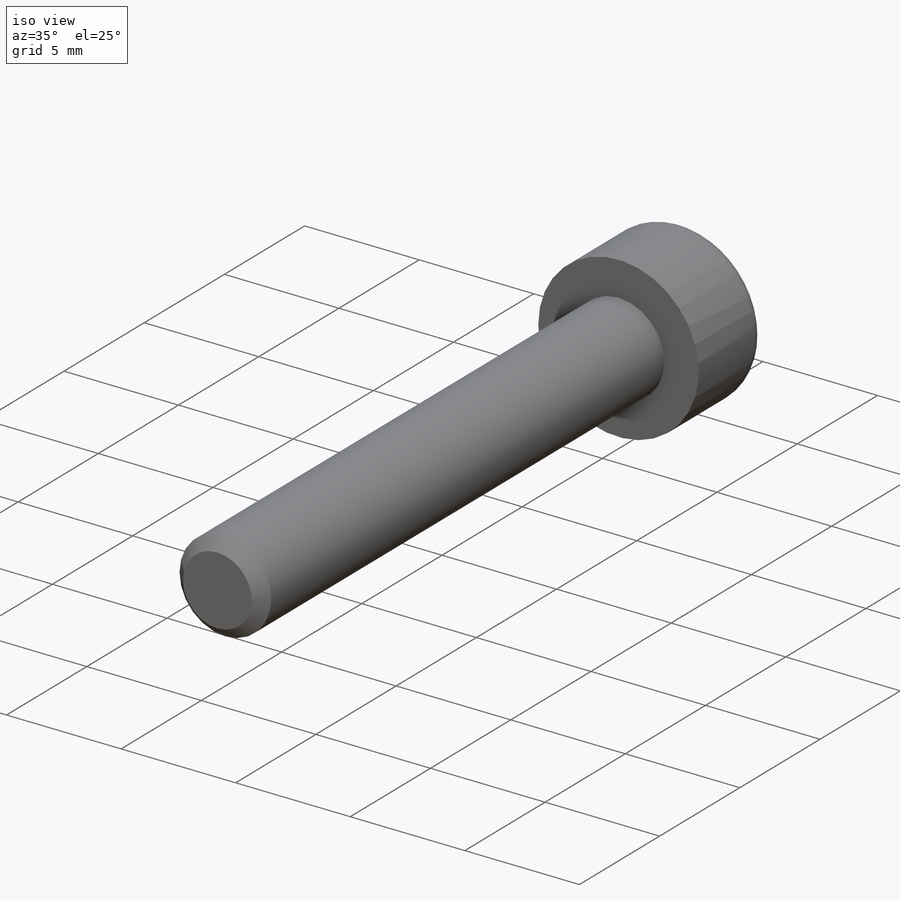
[diagram: iso view]
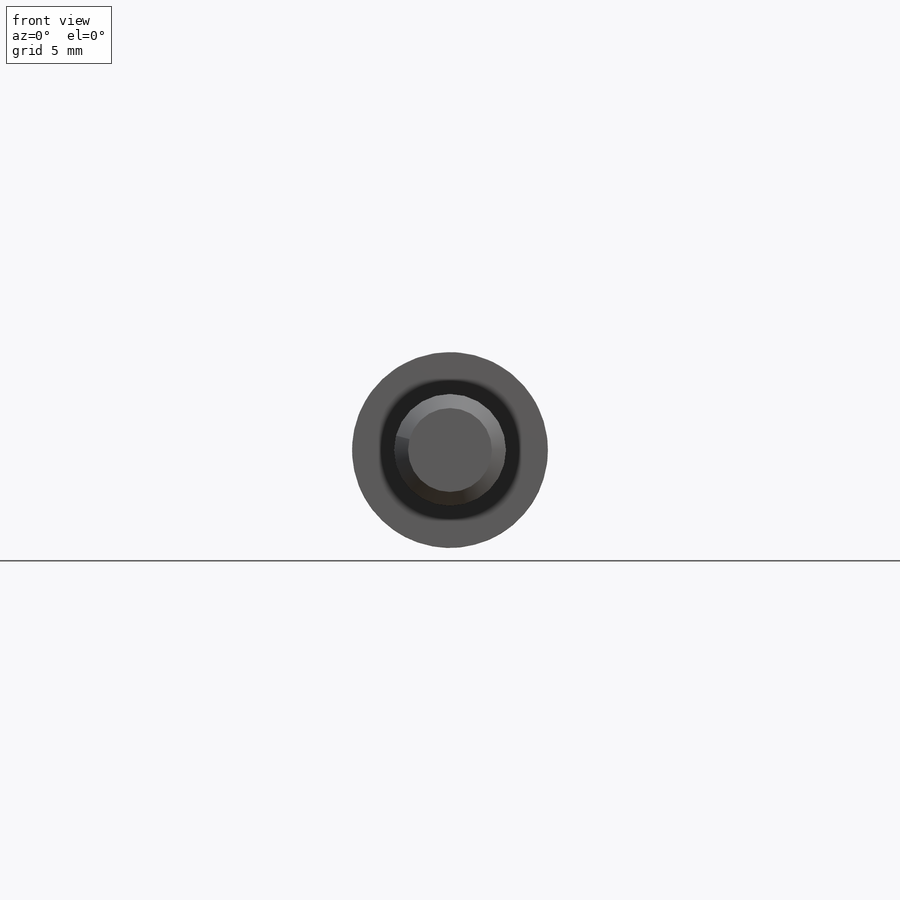
[diagram: front view]
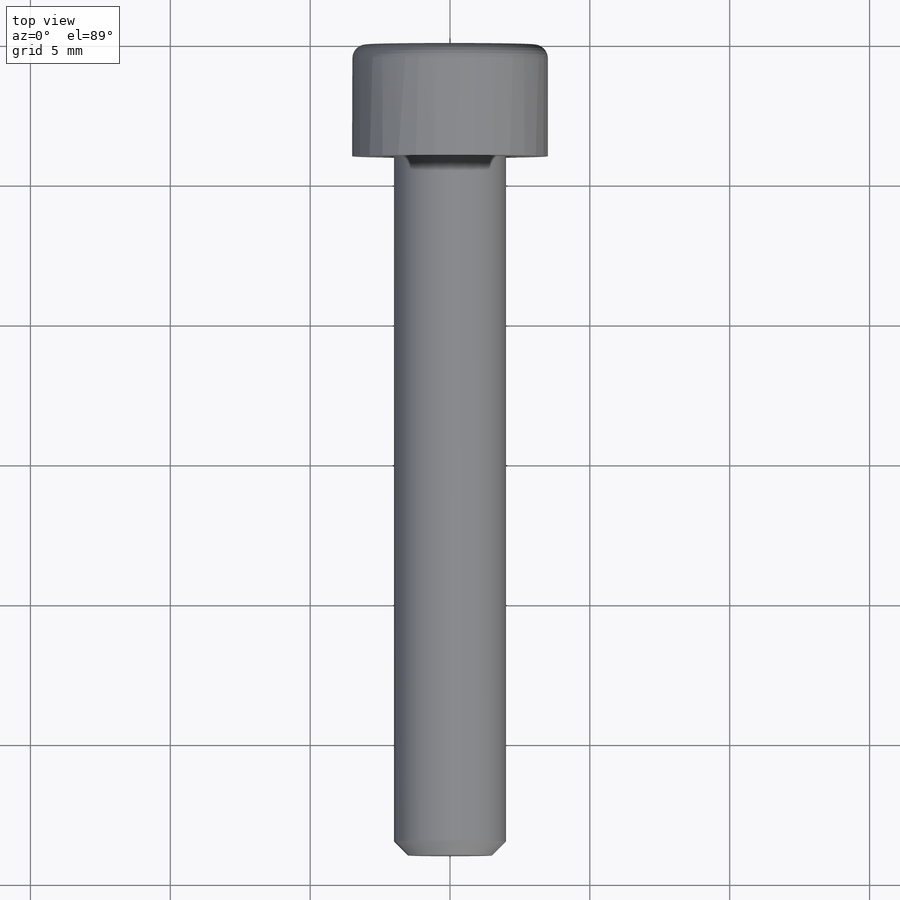
[diagram: top view]
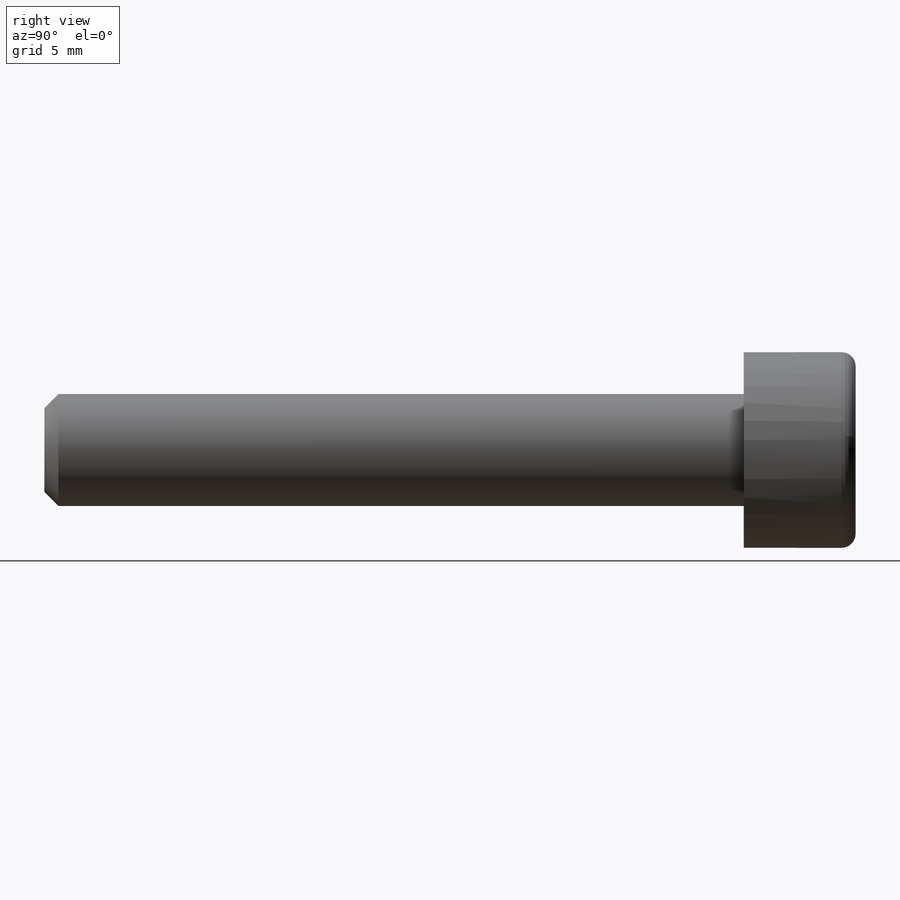
[diagram: right view]
SOLIDWORKS PART (.sldprt)
format: sldprt  version: not decoded by parser v0  size: 140,800 bytes
history: native  units: mm
features: plane x3, sketch x3, extrude x2, material x1, cut_extrude x1, chamfer x1, fillet x1 (+8 scaffold rows collapsed)
feature tree (20):
  scaffold x8  (default folders/planes/origin — collapsed)
  material  "Matériau <non spécifié>"
  plane  "Plan de face"
  plane  "Plan de dessus"
  plane  "Plan de droite"
  sketch  "Esquisse1"  dims[D1=7.0mm]
  extrude  "Boss.-Extru.1"  Depth=4mm
  sketch  "Esquisse2"  dims[D1=4.0mm]
  extrude  "Boss.-Extru.2"  Depth=25mm
  sketch  "Esquisse3"  dims[D1=3.0mm]
  cut_extrude  "Enlèv. mat.-Extru.1"  Depth=3mm
  chamfer  "Chanfrein1"  Distance=0.5mm Angle=45deg
  fillet  "Congé1"  Radius=0.5mm
decode coverage: 8 of 8 modeling features carry decoded parameters
note: suppression state not decoded; provenance and decode notes live in map.json
